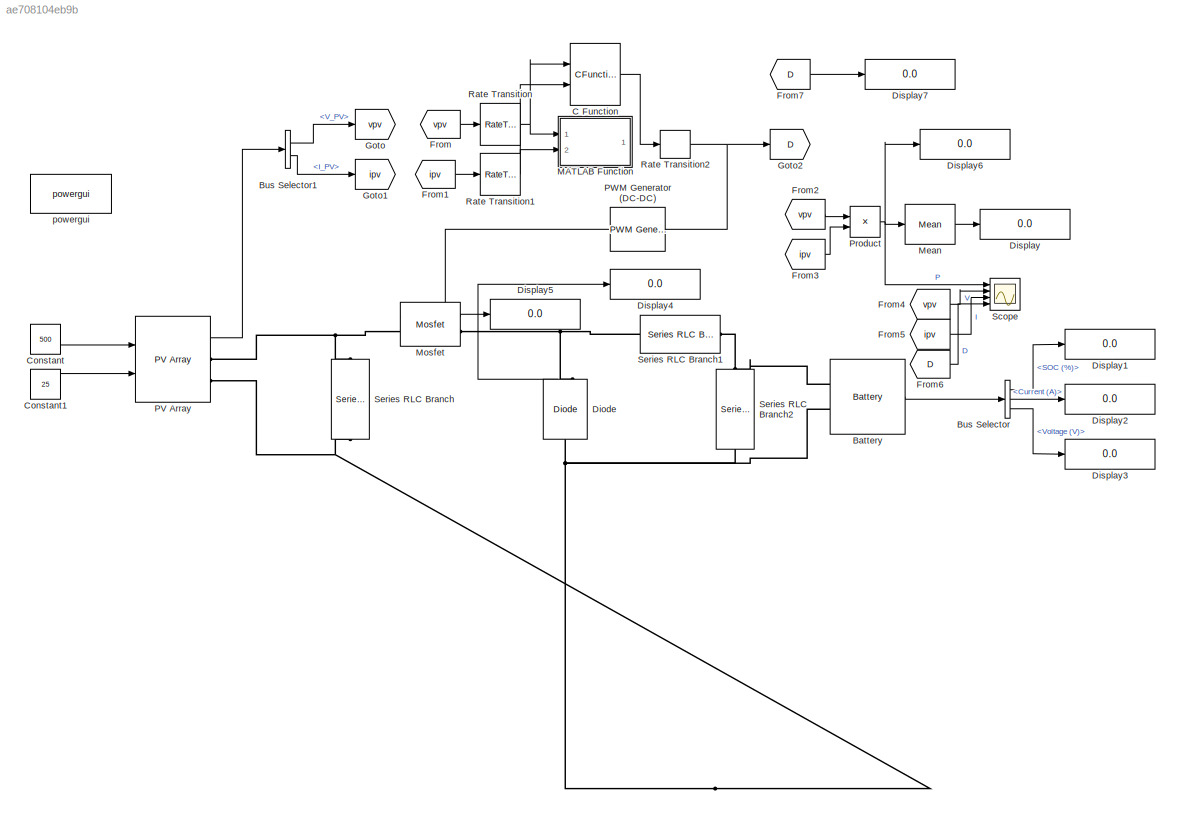
MODEL slx_ae708104eb9b
KIND model
CONFIG AbsTol = auto
CONFIG EnableMultiTasking = off
CONFIG FixedStep = 1e-6
CONFIG MaxStep = auto
CONFIG MinStep = auto
CONFIG RelTol = 1e-3
CONFIG SampleTimeConstraint = Unconstrained
CONFIG SolverName = FixedStepDiscrete
CONFIG StartTime = 0.0
CONFIG StopTime = 0.5
BLOCK [Reference] Battery  REF=electricdrivelib/Extra Sources/Battery
  NameLocation = top
  Ports = [0, 1, 0, 0, 0, 2]
  SourceBlock = electricdrivelib/Extra Sources/Battery
  SourceProductBaseCode = PS
  SourceType = Battery
BLOCK [BusSelector] Bus Selector
  OutputSignals = SOC (%),Current (A),Voltage (V)
  Ports = [1, 3]
BLOCK [BusSelector] Bus Selector1
  OutputSignals = V_PV,I_PV
  Ports = [1, 2]
BLOCK [CFunction] C Function
  OutputCode = double Ppv = Vpv * Ipv;\n    double delP = Ppv - Pprev;\n    double delV = Vpv - Vprev;\n    \n    if (delP != 0) {\n        if (delP > 0) {\n            if (delV > 0) {\n                D = Dprev - deltaD;\n            } else {\n                D = Dprev + deltaD;\n            }\n        } else {\n            if (delV > 0) {\n                D = Dprev + deltaD;\n            } else {\n                D = Dprev -...<+185ch>
  Ports = [2, 1]
  StartCode = Dmin = 0.05;\nDmax = 0.95;\nDprev = 0.95;\nVprev = 0;\nPprev = 0;\ndeltaD = 0.02;
BLOCK [Constant] Constant
  SampleTime = Ts
  Value = 500
BLOCK [Constant] Constant1
  SampleTime = Ts
  Value = 25
BLOCK [Reference] Diode  REF=powerlib/Power
Electronics/Diode
  NameLocation = right
  Ports = [0, 1, 0, 0, 0, 1, 1]
  SourceBlock = powerlib/Power\nElectronics/Diode
  SourceProductBaseCode = PS
  SourceType = Diode
BLOCK [Display] Display
  Decimation = 1
  Ports = [1]
BLOCK [Display] Display1
  Decimation = 1
  Ports = [1]
BLOCK [Display] Display2
  Decimation = 1
  Ports = [1]
BLOCK [Display] Display3
  Decimation = 1
  Ports = [1]
BLOCK [Display] Display4
  Decimation = 1
  Ports = [1]
BLOCK [Display] Display5
  Decimation = 1
  Ports = [1]
BLOCK [Display] Display6
  Decimation = 1
  Ports = [1]
BLOCK [Display] Display7
  Decimation = 1
  Ports = [1]
BLOCK [From] From
  GotoTag = vpv
  TagVisibility = global
BLOCK [From] From1
  GotoTag = ipv
  TagVisibility = global
BLOCK [From] From2
  GotoTag = vpv
  TagVisibility = global
BLOCK [From] From3
  GotoTag = ipv
  TagVisibility = global
BLOCK [From] From4
  GotoTag = vpv
  TagVisibility = global
BLOCK [From] From5
  GotoTag = ipv
  TagVisibility = global
BLOCK [From] From6
  GotoTag = D
  TagVisibility = global
BLOCK [From] From7
  GotoTag = D
  TagVisibility = global
BLOCK [Goto] Goto
  GotoTag = vpv
  TagVisibility = global
BLOCK [Goto] Goto1
  GotoTag = ipv
  TagVisibility = global
BLOCK [Goto] Goto2
  GotoTag = D
  TagVisibility = global
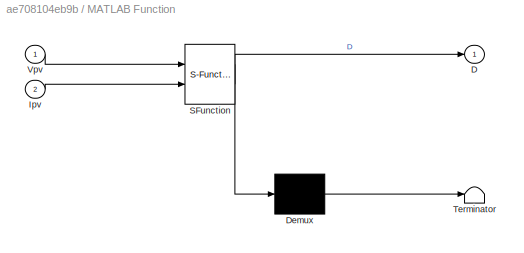
BLOCK [SubSystem] MATLAB Function
  ErrorFcn = Stateflow.Translate.translate
  PermitHierarchicalResolution = ExplicitOnly
  Ports = [2, 1]
  RequestExecContextInheritance = off
  SFBlockType = MATLAB Function
  TreatAsAtomicUnit = on
BLOCK [Demux] MATLAB Function/ Demux 
  Outputs = 1
  Ports = [1, 1]
BLOCK [S-Function] MATLAB Function/ SFunction 
  EnableBusSupport = on
  FunctionName = sf_sfun
  PortCounts = [2 2]
  Ports = [2, 2]
  SFcnIsStateOwnerBlock = off
  SFunctionDeploymentMode = off
  Tag = Stateflow S-Function 2
BLOCK [Terminator] MATLAB Function/ Terminator 
BLOCK [Outport] MATLAB Function/D
BLOCK [Inport] MATLAB Function/Ipv
  Port = 2
BLOCK [Inport] MATLAB Function/Vpv
BLOCK [Reference] Mean  REF=powerlib_meascontrol/Measurements/Mean
  Ports = [1, 1]
  SourceBlock = powerlib_meascontrol/Measurements/Mean
  SourceProductBaseCode = PS
  SourceType = Mean
BLOCK [Reference] Mosfet  REF=powerlib/Power
Electronics/Mosfet
  Ports = [1, 1, 0, 0, 0, 1, 1]
  SourceBlock = powerlib/Power\nElectronics/Mosfet
  SourceProductBaseCode = PS
  SourceType = Mosfet
BLOCK [Reference] PV Array  REF=re_lib/Solar/PV Array
  Ports = [2, 1, 0, 0, 0, 0, 2]
  SourceBlock = re_lib/Solar/PV Array
  SourceProductBaseCode = PS
  SourceType = PV array
BLOCK [Reference] PWM Generator (DC-DC)  REF=powerlib_meascontrol/Pulse & Signal
Generators/PWM Generator
(DC-DC)
  NameLocation = top
  Ports = [1, 1]
  SourceBlock = powerlib_meascontrol/Pulse & Signal\nGenerators/PWM Generator\n(DC-DC)
  SourceProductBaseCode = PS
  SourceType = PWM Generator (DC-DC)
BLOCK [Product] Product
  Ports = [2, 1]
BLOCK [RateTransition] Rate Transition
  OutPortSampleTime = Ts_control
BLOCK [RateTransition] Rate Transition1
  OutPortSampleTime = Ts_control
BLOCK [RateTransition] Rate Transition2
  OutPortSampleTime = Ts
BLOCK [Scope] Scope
  Floating = off
  NumInputPorts = 4
  Ports = [4]
  ScopeSpecificationString = Simulink.scopes.TimeScopeBlockCfg('CurrentConfiguration', extmgr.ConfigurationSet(extmgr.Configuration('Core','General UI',true),extmgr.Configuration('Core','Source UI',true),extmgr.Configuration('Sources','WiredSimulink',true),extmgr.Configuration('Visuals','Time Domain',true,'SerializedDisplays',{struct('MinYLimReal','-0.32455','MaxYLimReal','2.92132','YLabelReal','','MinYLimMag','0.00000','MaxY...<+3335ch>
BLOCK [Reference] Series RLC Branch  REF=powerlib/Elements/Series RLC Branch
  NameLocation = left
  Ports = [0, 0, 0, 0, 0, 1, 1]
  SourceBlock = powerlib/Elements/Series RLC Branch
  SourceProductBaseCode = PS
  SourceType = Series RLC Branch
BLOCK [Reference] Series RLC Branch1  REF=powerlib/Elements/Series RLC Branch
  Ports = [0, 0, 0, 0, 0, 1, 1]
  SourceBlock = powerlib/Elements/Series RLC Branch
  SourceProductBaseCode = PS
  SourceType = Series RLC Branch
BLOCK [Reference] Series RLC Branch2  REF=powerlib/Elements/Series RLC Branch
  NameLocation = left
  Ports = [0, 0, 0, 0, 0, 1, 1]
  SourceBlock = powerlib/Elements/Series RLC Branch
  SourceProductBaseCode = PS
  SourceType = Series RLC Branch
BLOCK [Reference] powergui  REF=powerlib/powergui
  Ports = []
  Priority = 1
  SourceBlock = powerlib/powergui
  SourceProductBaseCode = PS
  SourceType = PSB option menu block
LINE Battery:1 -> Bus Selector:1
LINE Bus Selector1:1 -> Goto:1
LINE Bus Selector1:2 -> Goto1:1
LINE Bus Selector:1 -> Display1:1
LINE Bus Selector:2 -> Display2:1
LINE Bus Selector:3 -> Display3:1
LINE C Function:1 -> Rate Transition2:1
LINE Constant1:1 -> PV Array:2
LINE Constant:1 -> PV Array:1
LINE Diode:1 -> Display4:1
LINE From1:1 -> Rate Transition1:1
LINE From2:1 -> Product:1
LINE From3:1 -> Product:2
LINE From4:1 -> Scope:2
LINE From5:1 -> Scope:3
LINE From6:1 -> Scope:4
LINE From7:1 -> Display7:1
LINE From:1 -> Rate Transition:1
LINE Mean:1 -> Display:1
LINE Mosfet:1 -> Display5:1
LINE PV Array:1 -> Bus Selector1:1
LINE PWM Generator (DC-DC):1 -> Mosfet:1
NET Product:1 -> Display6:1, Mean:1, Scope:1
NET Rate Transition1:1 -> C Function:2, MATLAB Function:2
NET Rate Transition2:1 -> Goto2:1, PWM Generator (DC-DC):1
NET Rate Transition:1 -> C Function:1, MATLAB Function:1
PNET net1: Battery:LConn1 -- Series RLC Branch1:RConn1 -- Series RLC Branch2:LConn1
PNET net2: Battery:LConn2 -- Diode:LConn1 -- PV Array:RConn2 -- Series RLC Branch2:RConn1 -- Series RLC Branch:RConn1
PNET net3: Diode:RConn1 -- Mosfet:RConn1 -- Series RLC Branch1:LConn1
PNET net4: Mosfet:LConn1 -- PV Array:RConn1 -- Series RLC Branch:LConn1
note: NET lines group one-source signal fan-out (src -> all destinations, sorted); 1:1 wires keep LINE; PNET lines group multi-terminal physical nets as a canonical sorted terminal list (undirected conserving connections); 2-terminal nets keep the pairwise PLINE form
CHART MATLAB Function states=1 transitions=1
  STATE_LABEL 'eML_blk_kernel()'
  STATE_LABEL 'SCRIPT:\nfunction D = mpptm(Vpv,Ipv)\n\nDmin = 0.05;\nDmax = 0.95;\npersistent Dprev Pprev Vprev ;\n\nif isempty(Dprev)\n    Dprev = 0.95;\n    Vprev = 0;\n    Pprev = 0;\nend\n%initialize parameters\ndeltaD = 0.02;\n\n% initalize measured array power\nPpv = Vpv*Ipv;\n\nif((Ppv - Pprev) ~= 0) \n    if((Ppv - Pprev) > 0) \n        if((Vpv-Vprev) > 0) \n            D = Dprev - deltaD;\n        else\n            D = Dprev ...<+278ch>'
CHART  states=0 transitions=0
